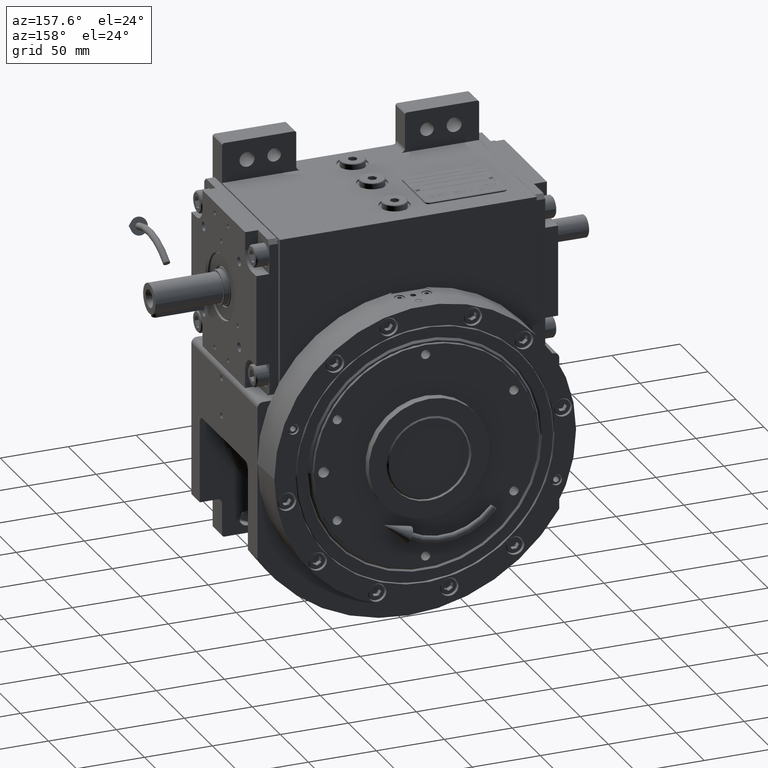
[diagram: clean part render]
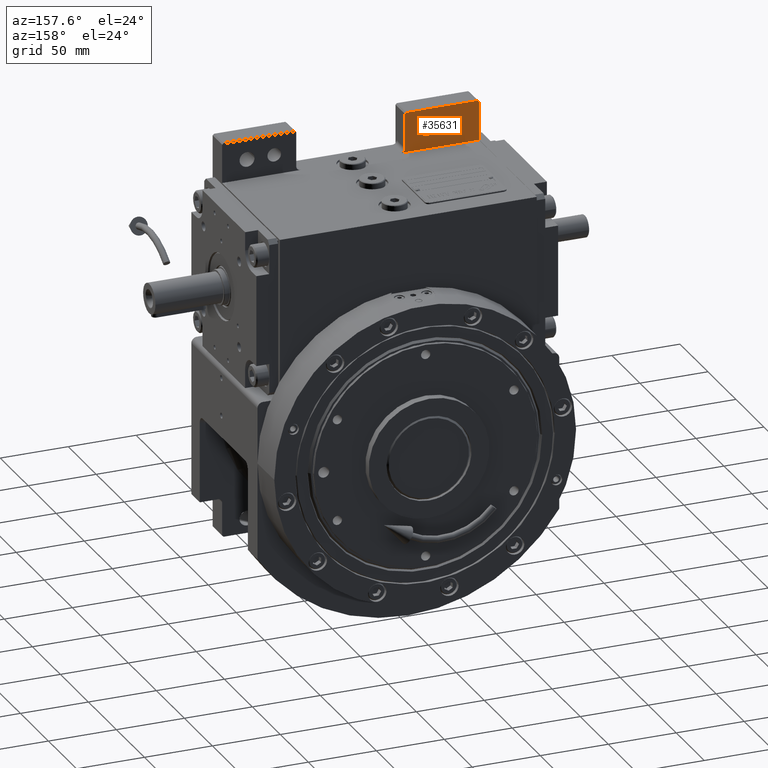
[diagram: same view with one face highlighted and labeled with its STEP entity id]
A machine part, auxiliary view. The second image highlights one B-rep face of the part: STEP entity #35631.
In plain terms, the highlighted planar face has unit normal (0, -1, 0).
Its self-contained STEP definition (entity closure, byte-faithful):
#1308 = CARTESIAN_POINT ( 'NONE',  ( -36.99999999999934630, -38.50000000000000000, 166.5000000000000000 ) ) ;
#1733 = CARTESIAN_POINT ( 'NONE',  ( -39.99999999999929656, -38.50000000000000000, 166.5000000000000000 ) ) ;
#1964 = EDGE_CURVE ( 'NONE', #3047, #43730, #46216, .T. ) ;
#2957 = CARTESIAN_POINT ( 'NONE',  ( -56.20000000000000284, -38.50000000000000000, 178.0000000000000000 ) ) ;
#2970 = CARTESIAN_POINT ( 'NONE',  ( -56.20000000000000284, -38.50000000000000000, 178.0000000000000000 ) ) ;
#3047 = VERTEX_POINT ( 'NONE', #59368 ) ;
#3493 = EDGE_LOOP ( 'NONE', ( #51834, #49666 ) ) ;
#3645 = CARTESIAN_POINT ( 'NONE',  ( -81.69999999999998863, -38.50000000000000000, 178.0000000000000000 ) ) ;
#4202 = CARTESIAN_POINT ( 'NONE',  ( -94.50000000000000000, -38.50000000000000000, 163.5000000000000000 ) ) ;
#5377 = VERTEX_POINT ( 'NONE', #59553 ) ;
#7211 = EDGE_CURVE ( 'NONE', #19852, #27122, #20257, .T. ) ;
#7967 = VERTEX_POINT ( 'NONE', #62981 ) ;
#9254 = CARTESIAN_POINT ( 'NONE',  ( -40.99999999999930367, -38.50000000000000000, 193.0000000000000000 ) ) ;
#10418 = PLANE ( 'NONE',  #24638 ) ;
#11439 = FACE_OUTER_BOUND ( 'NONE', #60449, .T. ) ;
#11775 = DIRECTION ( 'NONE',  ( -1.000000000000000000, 0.000000000000000000, 0.000000000000000000 ) ) ;
#12391 = ORIENTED_EDGE ( 'NONE', *, *, #24345, .T. ) ;
#13166 = VECTOR ( 'NONE', #22780, 1000.000000000000000 ) ;
#14199 = DIRECTION ( 'NONE',  ( 1.000000000000000000, 0.000000000000000000, 0.000000000000000000 ) ) ;
#14779 = EDGE_CURVE ( 'NONE', #48948, #15860, #63275, .T. ) ;
#14805 = DIRECTION ( 'NONE',  ( 1.000000000000000000, 0.000000000000000000, 0.000000000000000000 ) ) ;
#15860 = VERTEX_POINT ( 'NONE', #50231 ) ;
#16538 = VECTOR ( 'NONE', #14199, 1000.000000000000000 ) ;
#16921 = CIRCLE ( 'NONE', #22448, 5.000000000000004441 ) ;
#19443 = VERTEX_POINT ( 'NONE', #67569 ) ;
#19590 = ORIENTED_EDGE ( 'NONE', *, *, #63767, .T. ) ;
#19633 = EDGE_CURVE ( 'NONE', #7967, #5377, #52037, .T. ) ;
#19800 = LINE ( 'NONE', #30877, #34353 ) ;
#19852 = VERTEX_POINT ( 'NONE', #3645 ) ;
#19974 = CARTESIAN_POINT ( 'NONE',  ( -76.20000000000000284, -38.50000000000000000, 178.0000000000000000 ) ) ;
#20257 = CIRCLE ( 'NONE', #58879, 5.500000000000005329 ) ;
#20759 = FACE_BOUND ( 'NONE', #3493, .T. ) ;
#21305 = VECTOR ( 'NONE', #62412, 1000.000000000000000 ) ;
#22355 = DIRECTION ( 'NONE',  ( 0.000000000000000000, -1.000000000000000000, 0.000000000000000000 ) ) ;
#22448 = AXIS2_PLACEMENT_3D ( 'NONE', #2970, #29566, #25056 ) ;
#22780 = DIRECTION ( 'NONE',  ( 0.000000000000000000, 0.000000000000000000, 1.000000000000000000 ) ) ;
#23388 = CARTESIAN_POINT ( 'NONE',  ( -76.20000000000000284, -38.50000000000000000, 178.0000000000000000 ) ) ;
#24009 = DIRECTION ( 'NONE',  ( 0.000000000000000000, 1.000000000000000000, 0.000000000000000000 ) ) ;
#24345 = EDGE_CURVE ( 'NONE', #48948, #43730, #46431, .T. ) ;
#24638 = AXIS2_PLACEMENT_3D ( 'NONE', #31503, #26320, #11775 ) ;
#25056 = DIRECTION ( 'NONE',  ( 0.000000000000000000, 0.000000000000000000, 1.000000000000000000 ) ) ;
#25250 = LINE ( 'NONE', #4202, #16538 ) ;
#25667 = DIRECTION ( 'NONE',  ( 0.000000000000000000, 0.000000000000000000, -1.000000000000000000 ) ) ;
#26320 = DIRECTION ( 'NONE',  ( 0.000000000000000000, -1.000000000000000000, 0.000000000000000000 ) ) ;
#27122 = VERTEX_POINT ( 'NONE', #35400 ) ;
#27653 = CIRCLE ( 'NONE', #43080, 5.500000000000005329 ) ;
#29150 = VERTEX_POINT ( 'NONE', #56291 ) ;
#29566 = DIRECTION ( 'NONE',  ( 0.000000000000000000, 1.000000000000000000, 0.000000000000000000 ) ) ;
#29620 = DIRECTION ( 'NONE',  ( -1.000000000000000000, 0.000000000000000000, 0.000000000000000000 ) ) ;
#29860 = CARTESIAN_POINT ( 'NONE',  ( -94.50000000000000000, -38.50000000000000000, 192.0000000000000000 ) ) ;
#30496 = VECTOR ( 'NONE', #40918, 1000.000000000000114 ) ;
#30870 = CARTESIAN_POINT ( 'NONE',  ( -94.50000000000000000, -38.50000000000000000, 192.0000000000000000 ) ) ;
#30877 = CARTESIAN_POINT ( 'NONE',  ( -40.99999999999930367, -38.50000000000000000, 193.0000000000000000 ) ) ;
#31503 = CARTESIAN_POINT ( 'NONE',  ( 0.000000000000000000, -38.50000000000000000, 0.000000000000000000 ) ) ;
#33728 = ORIENTED_EDGE ( 'NONE', *, *, #53188, .F. ) ;
#33957 = EDGE_LOOP ( 'NONE', ( #49354, #36554 ) ) ;
#34061 = DIRECTION ( 'NONE',  ( 0.000000000000000000, 0.000000000000000000, 1.000000000000000000 ) ) ;
#34348 = AXIS2_PLACEMENT_3D ( 'NONE', #1308, #22355, #65470 ) ;
#34353 = VECTOR ( 'NONE', #61600, 1000.000000000000114 ) ;
#35400 = CARTESIAN_POINT ( 'NONE',  ( -70.70000000000000284, -38.50000000000000000, 178.0000000000000000 ) ) ;
#35631 = ADVANCED_FACE ( 'NONE', ( #58749, #20759, #11439 ), #10418, .F. ) ;
#36554 = ORIENTED_EDGE ( 'NONE', *, *, #19633, .F. ) ;
#36880 = ORIENTED_EDGE ( 'NONE', *, *, #54688, .F. ) ;
#37640 = EDGE_CURVE ( 'NONE', #5377, #7967, #16921, .T. ) ;
#38222 = ORIENTED_EDGE ( 'NONE', *, *, #1964, .F. ) ;
#38377 = ORIENTED_EDGE ( 'NONE', *, *, #14779, .F. ) ;
#39908 = ORIENTED_EDGE ( 'NONE', *, *, #56175, .T. ) ;
#40918 = DIRECTION ( 'NONE',  ( 0.7071067811865474617, 0.000000000000000000, 0.7071067811865474617 ) ) ;
#41449 = VERTEX_POINT ( 'NONE', #67323 ) ;
#43080 = AXIS2_PLACEMENT_3D ( 'NONE', #19974, #62108, #14805 ) ;
#43730 = VERTEX_POINT ( 'NONE', #62912 ) ;
#45860 = DIRECTION ( 'NONE',  ( 0.000000000000000000, 1.000000000000000000, 0.000000000000000000 ) ) ;
#46216 = LINE ( 'NONE', #9254, #21305 ) ;
#46431 = LINE ( 'NONE', #29860, #30496 ) ;
#48948 = VERTEX_POINT ( 'NONE', #49439 ) ;
#49044 = LINE ( 'NONE', #1733, #13166 ) ;
#49354 = ORIENTED_EDGE ( 'NONE', *, *, #37640, .F. ) ;
#49439 = CARTESIAN_POINT ( 'NONE',  ( -94.50000000000000000, -38.50000000000000000, 192.0000000000000000 ) ) ;
#49666 = ORIENTED_EDGE ( 'NONE', *, *, #7211, .F. ) ;
#50231 = CARTESIAN_POINT ( 'NONE',  ( -94.50000000000000000, -38.50000000000000000, 163.5000000000000000 ) ) ;
#50938 = AXIS2_PLACEMENT_3D ( 'NONE', #2957, #24009, #34061 ) ;
#51834 = ORIENTED_EDGE ( 'NONE', *, *, #62483, .F. ) ;
#52014 = CIRCLE ( 'NONE', #34348, 3.000000000000002665 ) ;
#52037 = CIRCLE ( 'NONE', #50938, 5.000000000000004441 ) ;
#53188 = EDGE_CURVE ( 'NONE', #15860, #41449, #25250, .T. ) ;
#53871 = VECTOR ( 'NONE', #25667, 1000.000000000000000 ) ;
#54688 = EDGE_CURVE ( 'NONE', #29150, #19443, #49044, .T. ) ;
#56175 = EDGE_CURVE ( 'NONE', #29150, #41449, #52014, .T. ) ;
#56291 = CARTESIAN_POINT ( 'NONE',  ( -39.99999999999929656, -38.50000000000000000, 166.5000000000000000 ) ) ;
#58749 = FACE_BOUND ( 'NONE', #33957, .T. ) ;
#58879 = AXIS2_PLACEMENT_3D ( 'NONE', #23388, #45860, #29620 ) ;
#59368 = CARTESIAN_POINT ( 'NONE',  ( -40.99999999999930367, -38.50000000000000000, 193.0000000000000000 ) ) ;
#59553 = CARTESIAN_POINT ( 'NONE',  ( -56.20000000000000284, -38.50000000000000000, 183.0000000000000000 ) ) ;
#60449 = EDGE_LOOP ( 'NONE', ( #36880, #39908, #33728, #38377, #12391, #38222, #19590 ) ) ;
#61600 = DIRECTION ( 'NONE',  ( 0.7071067811865474617, 0.000000000000000000, -0.7071067811865474617 ) ) ;
#62108 = DIRECTION ( 'NONE',  ( 0.000000000000000000, 1.000000000000000000, 0.000000000000000000 ) ) ;
#62412 = DIRECTION ( 'NONE',  ( -1.000000000000000000, 0.000000000000000000, 0.000000000000000000 ) ) ;
#62483 = EDGE_CURVE ( 'NONE', #27122, #19852, #27653, .T. ) ;
#62912 = CARTESIAN_POINT ( 'NONE',  ( -93.50000000000000000, -38.50000000000000000, 193.0000000000000000 ) ) ;
#62981 = CARTESIAN_POINT ( 'NONE',  ( -56.20000000000000284, -38.50000000000000000, 173.0000000000000000 ) ) ;
#63275 = LINE ( 'NONE', #30870, #53871 ) ;
#63767 = EDGE_CURVE ( 'NONE', #3047, #19443, #19800, .T. ) ;
#65470 = DIRECTION ( 'NONE',  ( -1.000000000000000000, 0.000000000000000000, 0.000000000000000000 ) ) ;
#67323 = CARTESIAN_POINT ( 'NONE',  ( -36.99999999999929656, -38.50000000000000000, 163.5000000000000000 ) ) ;
#67569 = CARTESIAN_POINT ( 'NONE',  ( -39.99999999999929656, -38.50000000000000000, 192.0000000000000000 ) ) ;